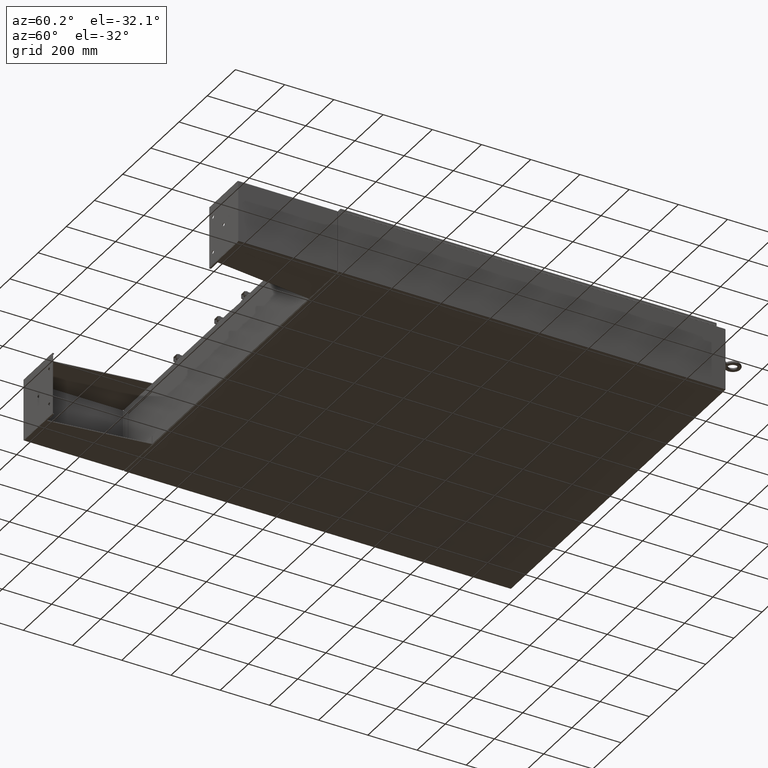
[diagram: clean part render]
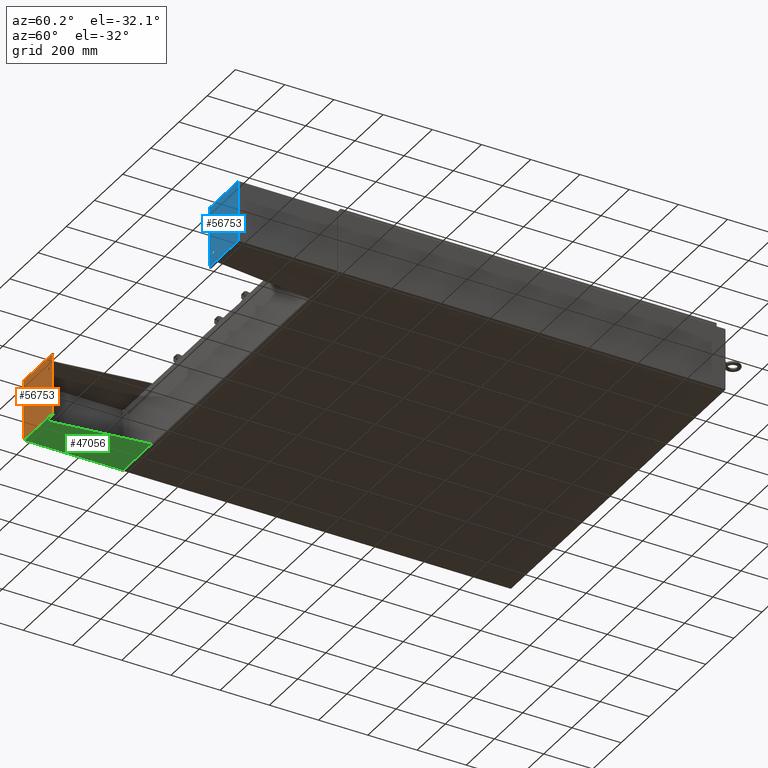
[diagram: same view with three faces highlighted in distinct colors, each labeled with its STEP entity id]
A machine part, auxiliary view with three faces highlighted in distinct colors.
Their STEP definitions:

[orange] entity #56753 — the highlighted planar face has unit normal (-0, -1, -0).
#542 = ORIENTED_EDGE ( 'NONE', *, *, #16895, .T. ) ;
#575 = AXIS2_PLACEMENT_3D ( 'NONE', #14690, #52329, #20105 ) ;
#1012 = VERTEX_POINT ( 'NONE', #57414 ) ;
#1205 = VERTEX_POINT ( 'NONE', #59295 ) ;
#1590 = EDGE_CURVE ( 'NONE', #41662, #35665, #32804, .T. ) ;
#3379 = FACE_OUTER_BOUND ( 'NONE', #40311, .T. ) ;
#3467 = EDGE_CURVE ( 'NONE', #40228, #1012, #7353, .T. ) ;
#3970 = CARTESIAN_POINT ( 'NONE',  ( 2.879000000000001800, -2.999999999999999600, -0.1050000000000000000 ) ) ;
#4107 = CARTESIAN_POINT ( 'NONE',  ( 4.878999999999997800, 4.000000000000000000, -0.1050000000000000000 ) ) ;
#4396 = AXIS2_PLACEMENT_3D ( 'NONE', #52409, #20192, #57824 ) ;
#5230 = ORIENTED_EDGE ( 'NONE', *, *, #11785, .F. ) ;
#5677 = ORIENTED_EDGE ( 'NONE', *, *, #5683, .T. ) ;
#5683 = EDGE_CURVE ( 'NONE', #35665, #41662, #31416, .T. ) ;
#6513 = AXIS2_PLACEMENT_3D ( 'NONE', #9412, #47020, #14829 ) ;
#6716 = AXIS2_PLACEMENT_3D ( 'NONE', #4107, #52522, #20307 ) ;
#7353 = CIRCLE ( 'NONE', #57452, 0.2499999999999998100 ) ;
#9349 = DIRECTION ( 'NONE',  ( -1.000000000000000000, 0.0000000000000000000, 0.0000000000000000000 ) ) ;
#9412 = CARTESIAN_POINT ( 'NONE',  ( 0.0000000000000000000, 0.0000000000000000000, -0.1050000000000000000 ) ) ;
#9508 = ORIENTED_EDGE ( 'NONE', *, *, #56071, .F. ) ;
#9997 = DIRECTION ( 'NONE',  ( -1.000000000000000000, -0.0000000000000000000, -0.0000000000000000000 ) ) ;
#11785 = EDGE_CURVE ( 'NONE', #46705, #56579, #61639, .T. ) ;
#11816 = EDGE_LOOP ( 'NONE', ( #542, #25419 ) ) ;
#14690 = CARTESIAN_POINT ( 'NONE',  ( -2.879000000000001800, -2.999999999999999600, -0.1050000000000000000 ) ) ;
#14829 = DIRECTION ( 'NONE',  ( -1.000000000000000000, 0.0000000000000000000, 0.0000000000000000000 ) ) ;
#15987 = FACE_BOUND ( 'NONE', #41636, .T. ) ;
#16572 = ORIENTED_EDGE ( 'NONE', *, *, #1590, .T. ) ;
#16895 = EDGE_CURVE ( 'NONE', #1205, #52854, #21179, .T. ) ;
#17550 = AXIS2_PLACEMENT_3D ( 'NONE', #50647, #18416, #56066 ) ;
#18416 = DIRECTION ( 'NONE',  ( -0.0000000000000000000, -0.0000000000000000000, 1.000000000000000000 ) ) ;
#19283 = ORIENTED_EDGE ( 'NONE', *, *, #27898, .F. ) ;
#19406 = VECTOR ( 'NONE', #67546, 39.37007874015748100 ) ;
#20105 = DIRECTION ( 'NONE',  ( -1.000000000000000000, 0.0000000000000000000, 0.0000000000000000000 ) ) ;
#20192 = DIRECTION ( 'NONE',  ( -0.0000000000000000000, -0.0000000000000000000, 1.000000000000000000 ) ) ;
#20307 = DIRECTION ( 'NONE',  ( -1.000000000000000000, 0.0000000000000000000, -0.0000000000000000000 ) ) ;
#20547 = DIRECTION ( 'NONE',  ( 0.0000000000000000000, 0.0000000000000000000, -1.000000000000000000 ) ) ;
#21179 = CIRCLE ( 'NONE', #17550, 0.2500000000000000000 ) ;
#21257 = DIRECTION ( 'NONE',  ( -0.0000000000000000000, -1.000000000000000000, -0.0000000000000000000 ) ) ;
#22446 = CARTESIAN_POINT ( 'NONE',  ( 2.629000000000001800, -2.999999999999999600, -0.1050000000000000000 ) ) ;
#23341 = ORIENTED_EDGE ( 'NONE', *, *, #51425, .F. ) ;
#24621 = DIRECTION ( 'NONE',  ( 1.000000000000000000, 0.0000000000000000000, 0.0000000000000000000 ) ) ;
#24701 = ORIENTED_EDGE ( 'NONE', *, *, #3467, .F. ) ;
#25419 = ORIENTED_EDGE ( 'NONE', *, *, #42131, .T. ) ;
#26943 = CIRCLE ( 'NONE', #6513, 0.2500000000000000000 ) ;
#27898 = EDGE_CURVE ( 'NONE', #32235, #41978, #33702, .T. ) ;
#31416 = CIRCLE ( 'NONE', #4396, 0.2499999999999998100 ) ;
#31970 = FACE_BOUND ( 'NONE', #63248, .T. ) ;
#32065 = CARTESIAN_POINT ( 'NONE',  ( -2.629000000000001800, -2.999999999999999600, -0.1050000000000000000 ) ) ;
#32235 = VERTEX_POINT ( 'NONE', #35721 ) ;
#32804 = CIRCLE ( 'NONE', #575, 0.2499999999999998100 ) ;
#33640 = FACE_BOUND ( 'NONE', #11816, .T. ) ;
#33702 = LINE ( 'NONE', #62136, #19406 ) ;
#35665 = VERTEX_POINT ( 'NONE', #63558 ) ;
#35721 = CARTESIAN_POINT ( 'NONE',  ( 4.878999999999997800, -4.000000000000000000, -0.1050000000000000000 ) ) ;
#36577 = VECTOR ( 'NONE', #9997, 39.37007874015748100 ) ;
#36806 = CARTESIAN_POINT ( 'NONE',  ( -4.879000000000002200, 4.000000000000000000, -0.1050000000000000000 ) ) ;
#39590 = AXIS2_PLACEMENT_3D ( 'NONE', #3970, #41570, #9349 ) ;
#39970 = LINE ( 'NONE', #36806, #36577 ) ;
#40094 = CARTESIAN_POINT ( 'NONE',  ( -4.879000000000002200, -4.000000000000000000, -0.1050000000000000000 ) ) ;
#40228 = VERTEX_POINT ( 'NONE', #22446 ) ;
#40311 = EDGE_LOOP ( 'NONE', ( #19283, #69177, #5230, #23341 ) ) ;
#41195 = CIRCLE ( 'NONE', #39590, 0.2499999999999998100 ) ;
#41570 = DIRECTION ( 'NONE',  ( 0.0000000000000000000, 0.0000000000000000000, -1.000000000000000000 ) ) ;
#41636 = EDGE_LOOP ( 'NONE', ( #9508, #24701 ) ) ;
#41662 = VERTEX_POINT ( 'NONE', #32065 ) ;
#41702 = PLANE ( 'NONE',  #6716 ) ;
#41978 = VERTEX_POINT ( 'NONE', #61203 ) ;
#42131 = EDGE_CURVE ( 'NONE', #52854, #1205, #26943, .T. ) ;
#46705 = VERTEX_POINT ( 'NONE', #53526 ) ;
#47020 = DIRECTION ( 'NONE',  ( -0.0000000000000000000, -0.0000000000000000000, 1.000000000000000000 ) ) ;
#47294 = VECTOR ( 'NONE', #21257, 39.37007874015748100 ) ;
#48590 = VECTOR ( 'NONE', #24621, 39.37007874015748100 ) ;
#49896 = CARTESIAN_POINT ( 'NONE',  ( -0.2500000000000000000, 3.061616997868383000E-017, -0.1050000000000000000 ) ) ;
#50647 = CARTESIAN_POINT ( 'NONE',  ( 0.0000000000000000000, 0.0000000000000000000, -0.1050000000000000000 ) ) ;
#51425 = EDGE_CURVE ( 'NONE', #41978, #46705, #39970, .T. ) ;
#52329 = DIRECTION ( 'NONE',  ( -0.0000000000000000000, -0.0000000000000000000, 1.000000000000000000 ) ) ;
#52409 = CARTESIAN_POINT ( 'NONE',  ( -2.879000000000001800, -2.999999999999999600, -0.1050000000000000000 ) ) ;
#52522 = DIRECTION ( 'NONE',  ( 0.0000000000000000000, 0.0000000000000000000, -1.000000000000000000 ) ) ;
#52764 = CARTESIAN_POINT ( 'NONE',  ( 2.879000000000001800, -2.999999999999999600, -0.1050000000000000000 ) ) ;
#52854 = VERTEX_POINT ( 'NONE', #49896 ) ;
#53482 = CARTESIAN_POINT ( 'NONE',  ( -4.879000000000002200, -4.000000000000000000, -0.1050000000000000000 ) ) ;
#53526 = CARTESIAN_POINT ( 'NONE',  ( -4.879000000000002200, 4.000000000000000000, -0.1050000000000000000 ) ) ;
#56066 = DIRECTION ( 'NONE',  ( -1.000000000000000000, 0.0000000000000000000, 0.0000000000000000000 ) ) ;
#56071 = EDGE_CURVE ( 'NONE', #1012, #40228, #41195, .T. ) ;
#56579 = VERTEX_POINT ( 'NONE', #40094 ) ;
#56753 = ADVANCED_FACE ( 'NONE', ( #3379, #33640, #31970, #15987 ), #41702, .T. ) ;
#57414 = CARTESIAN_POINT ( 'NONE',  ( 3.129000000000001300, -2.999999999999999600, -0.1050000000000000000 ) ) ;
#57452 = AXIS2_PLACEMENT_3D ( 'NONE', #52764, #20547, #58208 ) ;
#57824 = DIRECTION ( 'NONE',  ( -1.000000000000000000, 0.0000000000000000000, 0.0000000000000000000 ) ) ;
#57903 = EDGE_CURVE ( 'NONE', #56579, #32235, #62937, .T. ) ;
#58208 = DIRECTION ( 'NONE',  ( -1.000000000000000000, 0.0000000000000000000, 0.0000000000000000000 ) ) ;
#59295 = CARTESIAN_POINT ( 'NONE',  ( 0.2500000000000000000, 0.0000000000000000000, -0.1050000000000000000 ) ) ;
#61203 = CARTESIAN_POINT ( 'NONE',  ( 4.878999999999997800, 4.000000000000000000, -0.1050000000000000000 ) ) ;
#61639 = LINE ( 'NONE', #53482, #47294 ) ;
#62015 = CARTESIAN_POINT ( 'NONE',  ( -4.879000000000002200, -4.000000000000000000, -0.1050000000000000000 ) ) ;
#62136 = CARTESIAN_POINT ( 'NONE',  ( 4.878999999999997800, -4.000000000000000000, -0.1050000000000000000 ) ) ;
#62937 = LINE ( 'NONE', #62015, #48590 ) ;
#63248 = EDGE_LOOP ( 'NONE', ( #16572, #5677 ) ) ;
#63558 = CARTESIAN_POINT ( 'NONE',  ( -3.129000000000001300, -2.999999999999999600, -0.1050000000000000000 ) ) ;
#67546 = DIRECTION ( 'NONE',  ( 0.0000000000000000000, 1.000000000000000000, 0.0000000000000000000 ) ) ;
#69177 = ORIENTED_EDGE ( 'NONE', *, *, #57903, .F. ) ;

[blue] entity #56753 — the highlighted planar face has unit normal (-0, -1, -0).
#542 = ORIENTED_EDGE ( 'NONE', *, *, #16895, .T. ) ;
#575 = AXIS2_PLACEMENT_3D ( 'NONE', #14690, #52329, #20105 ) ;
#1012 = VERTEX_POINT ( 'NONE', #57414 ) ;
#1205 = VERTEX_POINT ( 'NONE', #59295 ) ;
#1590 = EDGE_CURVE ( 'NONE', #41662, #35665, #32804, .T. ) ;
#3379 = FACE_OUTER_BOUND ( 'NONE', #40311, .T. ) ;
#3467 = EDGE_CURVE ( 'NONE', #40228, #1012, #7353, .T. ) ;
#3970 = CARTESIAN_POINT ( 'NONE',  ( 2.879000000000001800, -2.999999999999999600, -0.1050000000000000000 ) ) ;
#4107 = CARTESIAN_POINT ( 'NONE',  ( 4.878999999999997800, 4.000000000000000000, -0.1050000000000000000 ) ) ;
#4396 = AXIS2_PLACEMENT_3D ( 'NONE', #52409, #20192, #57824 ) ;
#5230 = ORIENTED_EDGE ( 'NONE', *, *, #11785, .F. ) ;
#5677 = ORIENTED_EDGE ( 'NONE', *, *, #5683, .T. ) ;
#5683 = EDGE_CURVE ( 'NONE', #35665, #41662, #31416, .T. ) ;
#6513 = AXIS2_PLACEMENT_3D ( 'NONE', #9412, #47020, #14829 ) ;
#6716 = AXIS2_PLACEMENT_3D ( 'NONE', #4107, #52522, #20307 ) ;
#7353 = CIRCLE ( 'NONE', #57452, 0.2499999999999998100 ) ;
#9349 = DIRECTION ( 'NONE',  ( -1.000000000000000000, 0.0000000000000000000, 0.0000000000000000000 ) ) ;
#9412 = CARTESIAN_POINT ( 'NONE',  ( 0.0000000000000000000, 0.0000000000000000000, -0.1050000000000000000 ) ) ;
#9508 = ORIENTED_EDGE ( 'NONE', *, *, #56071, .F. ) ;
#9997 = DIRECTION ( 'NONE',  ( -1.000000000000000000, -0.0000000000000000000, -0.0000000000000000000 ) ) ;
#11785 = EDGE_CURVE ( 'NONE', #46705, #56579, #61639, .T. ) ;
#11816 = EDGE_LOOP ( 'NONE', ( #542, #25419 ) ) ;
#14690 = CARTESIAN_POINT ( 'NONE',  ( -2.879000000000001800, -2.999999999999999600, -0.1050000000000000000 ) ) ;
#14829 = DIRECTION ( 'NONE',  ( -1.000000000000000000, 0.0000000000000000000, 0.0000000000000000000 ) ) ;
#15987 = FACE_BOUND ( 'NONE', #41636, .T. ) ;
#16572 = ORIENTED_EDGE ( 'NONE', *, *, #1590, .T. ) ;
#16895 = EDGE_CURVE ( 'NONE', #1205, #52854, #21179, .T. ) ;
#17550 = AXIS2_PLACEMENT_3D ( 'NONE', #50647, #18416, #56066 ) ;
#18416 = DIRECTION ( 'NONE',  ( -0.0000000000000000000, -0.0000000000000000000, 1.000000000000000000 ) ) ;
#19283 = ORIENTED_EDGE ( 'NONE', *, *, #27898, .F. ) ;
#19406 = VECTOR ( 'NONE', #67546, 39.37007874015748100 ) ;
#20105 = DIRECTION ( 'NONE',  ( -1.000000000000000000, 0.0000000000000000000, 0.0000000000000000000 ) ) ;
#20192 = DIRECTION ( 'NONE',  ( -0.0000000000000000000, -0.0000000000000000000, 1.000000000000000000 ) ) ;
#20307 = DIRECTION ( 'NONE',  ( -1.000000000000000000, 0.0000000000000000000, -0.0000000000000000000 ) ) ;
#20547 = DIRECTION ( 'NONE',  ( 0.0000000000000000000, 0.0000000000000000000, -1.000000000000000000 ) ) ;
#21179 = CIRCLE ( 'NONE', #17550, 0.2500000000000000000 ) ;
#21257 = DIRECTION ( 'NONE',  ( -0.0000000000000000000, -1.000000000000000000, -0.0000000000000000000 ) ) ;
#22446 = CARTESIAN_POINT ( 'NONE',  ( 2.629000000000001800, -2.999999999999999600, -0.1050000000000000000 ) ) ;
#23341 = ORIENTED_EDGE ( 'NONE', *, *, #51425, .F. ) ;
#24621 = DIRECTION ( 'NONE',  ( 1.000000000000000000, 0.0000000000000000000, 0.0000000000000000000 ) ) ;
#24701 = ORIENTED_EDGE ( 'NONE', *, *, #3467, .F. ) ;
#25419 = ORIENTED_EDGE ( 'NONE', *, *, #42131, .T. ) ;
#26943 = CIRCLE ( 'NONE', #6513, 0.2500000000000000000 ) ;
#27898 = EDGE_CURVE ( 'NONE', #32235, #41978, #33702, .T. ) ;
#31416 = CIRCLE ( 'NONE', #4396, 0.2499999999999998100 ) ;
#31970 = FACE_BOUND ( 'NONE', #63248, .T. ) ;
#32065 = CARTESIAN_POINT ( 'NONE',  ( -2.629000000000001800, -2.999999999999999600, -0.1050000000000000000 ) ) ;
#32235 = VERTEX_POINT ( 'NONE', #35721 ) ;
#32804 = CIRCLE ( 'NONE', #575, 0.2499999999999998100 ) ;
#33640 = FACE_BOUND ( 'NONE', #11816, .T. ) ;
#33702 = LINE ( 'NONE', #62136, #19406 ) ;
#35665 = VERTEX_POINT ( 'NONE', #63558 ) ;
#35721 = CARTESIAN_POINT ( 'NONE',  ( 4.878999999999997800, -4.000000000000000000, -0.1050000000000000000 ) ) ;
#36577 = VECTOR ( 'NONE', #9997, 39.37007874015748100 ) ;
#36806 = CARTESIAN_POINT ( 'NONE',  ( -4.879000000000002200, 4.000000000000000000, -0.1050000000000000000 ) ) ;
#39590 = AXIS2_PLACEMENT_3D ( 'NONE', #3970, #41570, #9349 ) ;
#39970 = LINE ( 'NONE', #36806, #36577 ) ;
#40094 = CARTESIAN_POINT ( 'NONE',  ( -4.879000000000002200, -4.000000000000000000, -0.1050000000000000000 ) ) ;
#40228 = VERTEX_POINT ( 'NONE', #22446 ) ;
#40311 = EDGE_LOOP ( 'NONE', ( #19283, #69177, #5230, #23341 ) ) ;
#41195 = CIRCLE ( 'NONE', #39590, 0.2499999999999998100 ) ;
#41570 = DIRECTION ( 'NONE',  ( 0.0000000000000000000, 0.0000000000000000000, -1.000000000000000000 ) ) ;
#41636 = EDGE_LOOP ( 'NONE', ( #9508, #24701 ) ) ;
#41662 = VERTEX_POINT ( 'NONE', #32065 ) ;
#41702 = PLANE ( 'NONE',  #6716 ) ;
#41978 = VERTEX_POINT ( 'NONE', #61203 ) ;
#42131 = EDGE_CURVE ( 'NONE', #52854, #1205, #26943, .T. ) ;
#46705 = VERTEX_POINT ( 'NONE', #53526 ) ;
#47020 = DIRECTION ( 'NONE',  ( -0.0000000000000000000, -0.0000000000000000000, 1.000000000000000000 ) ) ;
#47294 = VECTOR ( 'NONE', #21257, 39.37007874015748100 ) ;
#48590 = VECTOR ( 'NONE', #24621, 39.37007874015748100 ) ;
#49896 = CARTESIAN_POINT ( 'NONE',  ( -0.2500000000000000000, 3.061616997868383000E-017, -0.1050000000000000000 ) ) ;
#50647 = CARTESIAN_POINT ( 'NONE',  ( 0.0000000000000000000, 0.0000000000000000000, -0.1050000000000000000 ) ) ;
#51425 = EDGE_CURVE ( 'NONE', #41978, #46705, #39970, .T. ) ;
#52329 = DIRECTION ( 'NONE',  ( -0.0000000000000000000, -0.0000000000000000000, 1.000000000000000000 ) ) ;
#52409 = CARTESIAN_POINT ( 'NONE',  ( -2.879000000000001800, -2.999999999999999600, -0.1050000000000000000 ) ) ;
#52522 = DIRECTION ( 'NONE',  ( 0.0000000000000000000, 0.0000000000000000000, -1.000000000000000000 ) ) ;
#52764 = CARTESIAN_POINT ( 'NONE',  ( 2.879000000000001800, -2.999999999999999600, -0.1050000000000000000 ) ) ;
#52854 = VERTEX_POINT ( 'NONE', #49896 ) ;
#53482 = CARTESIAN_POINT ( 'NONE',  ( -4.879000000000002200, -4.000000000000000000, -0.1050000000000000000 ) ) ;
#53526 = CARTESIAN_POINT ( 'NONE',  ( -4.879000000000002200, 4.000000000000000000, -0.1050000000000000000 ) ) ;
#56066 = DIRECTION ( 'NONE',  ( -1.000000000000000000, 0.0000000000000000000, 0.0000000000000000000 ) ) ;
#56071 = EDGE_CURVE ( 'NONE', #1012, #40228, #41195, .T. ) ;
#56579 = VERTEX_POINT ( 'NONE', #40094 ) ;
#56753 = ADVANCED_FACE ( 'NONE', ( #3379, #33640, #31970, #15987 ), #41702, .T. ) ;
#57414 = CARTESIAN_POINT ( 'NONE',  ( 3.129000000000001300, -2.999999999999999600, -0.1050000000000000000 ) ) ;
#57452 = AXIS2_PLACEMENT_3D ( 'NONE', #52764, #20547, #58208 ) ;
#57824 = DIRECTION ( 'NONE',  ( -1.000000000000000000, 0.0000000000000000000, 0.0000000000000000000 ) ) ;
#57903 = EDGE_CURVE ( 'NONE', #56579, #32235, #62937, .T. ) ;
#58208 = DIRECTION ( 'NONE',  ( -1.000000000000000000, 0.0000000000000000000, 0.0000000000000000000 ) ) ;
#59295 = CARTESIAN_POINT ( 'NONE',  ( 0.2500000000000000000, 0.0000000000000000000, -0.1050000000000000000 ) ) ;
#61203 = CARTESIAN_POINT ( 'NONE',  ( 4.878999999999997800, 4.000000000000000000, -0.1050000000000000000 ) ) ;
#61639 = LINE ( 'NONE', #53482, #47294 ) ;
#62015 = CARTESIAN_POINT ( 'NONE',  ( -4.879000000000002200, -4.000000000000000000, -0.1050000000000000000 ) ) ;
#62136 = CARTESIAN_POINT ( 'NONE',  ( 4.878999999999997800, -4.000000000000000000, -0.1050000000000000000 ) ) ;
#62937 = LINE ( 'NONE', #62015, #48590 ) ;
#63248 = EDGE_LOOP ( 'NONE', ( #16572, #5677 ) ) ;
#63558 = CARTESIAN_POINT ( 'NONE',  ( -3.129000000000001300, -2.999999999999999600, -0.1050000000000000000 ) ) ;
#67546 = DIRECTION ( 'NONE',  ( 0.0000000000000000000, 1.000000000000000000, 0.0000000000000000000 ) ) ;
#69177 = ORIENTED_EDGE ( 'NONE', *, *, #57903, .F. ) ;

[green] entity #47056 — the highlighted planar face has unit normal (-0, -0, 1).
#816 = EDGE_CURVE ( 'NONE', #20283, #58457, #22958, .T. ) ;
#1327 = DIRECTION ( 'NONE',  ( 7.004738445292925900E-015, 0.0000000000000000000, 1.000000000000000000 ) ) ;
#1390 = EDGE_CURVE ( 'NONE', #40135, #58457, #12661, .T. ) ;
#2884 = FACE_OUTER_BOUND ( 'NONE', #35505, .T. ) ;
#3335 = EDGE_CURVE ( 'NONE', #40378, #24212, #20828, .T. ) ;
#5312 = VECTOR ( 'NONE', #22848, 39.37007874015748100 ) ;
#9497 = LINE ( 'NONE', #42797, #65042 ) ;
#10521 = EDGE_CURVE ( 'NONE', #46176, #40378, #9497, .T. ) ;
#10583 = DIRECTION ( 'NONE',  ( 0.0000000000000000000, -1.000000000000000000, 0.0000000000000000000 ) ) ;
#11414 = PLANE ( 'NONE',  #12048 ) ;
#12048 = AXIS2_PLACEMENT_3D ( 'NONE', #65038, #49023, #16833 ) ;
#12661 = LINE ( 'NONE', #55237, #68191 ) ;
#13746 = DIRECTION ( 'NONE',  ( 4.399772607369799400E-016, 0.9922942345449394800, 0.1239038017531047700 ) ) ;
#15000 = VECTOR ( 'NONE', #1327, 39.37007874015748100 ) ;
#15410 = LINE ( 'NONE', #64213, #56649 ) ;
#15773 = VECTOR ( 'NONE', #13746, 39.37007874015748100 ) ;
#16013 = DIRECTION ( 'NONE',  ( -3.550958521948298200E-015, -0.0000000000000000000, -1.000000000000000000 ) ) ;
#16833 = DIRECTION ( 'NONE',  ( 3.550958521948298200E-015, 0.0000000000000000000, 1.000000000000000000 ) ) ;
#20283 = VERTEX_POINT ( 'NONE', #44880 ) ;
#20828 = LINE ( 'NONE', #51130, #15773 ) ;
#21080 = ORIENTED_EDGE ( 'NONE', *, *, #3335, .F. ) ;
#21715 = EDGE_CURVE ( 'NONE', #40135, #24212, #56235, .T. ) ;
#22053 = CARTESIAN_POINT ( 'NONE',  ( 5.000000000000028400, -7.749999999999999100, 8.001000000000006600 ) ) ;
#22226 = CARTESIAN_POINT ( 'NONE',  ( 5.000000000000041700, 7.857000000000001100, 8.000999999999985200 ) ) ;
#22848 = DIRECTION ( 'NONE',  ( -3.550958521948298200E-015, 0.0000000000000000000, -1.000000000000000000 ) ) ;
#22958 = LINE ( 'NONE', #38874, #5312 ) ;
#24212 = VERTEX_POINT ( 'NONE', #22226 ) ;
#32346 = CARTESIAN_POINT ( 'NONE',  ( 4.999999999999984900, 7.857000000000001100, 0.03899999999998721200 ) ) ;
#34053 = DIRECTION ( 'NONE',  ( -0.0000000000000000000, -1.000000000000000000, 0.0000000000000000000 ) ) ;
#34333 = ORIENTED_EDGE ( 'NONE', *, *, #41210, .T. ) ;
#35505 = EDGE_LOOP ( 'NONE', ( #69166, #34333, #55725, #60271, #50095, #21080 ) ) ;
#38874 = CARTESIAN_POINT ( 'NONE',  ( 5.000000000000028400, -7.999999999999999100, 8.000999999999987000 ) ) ;
#38947 = CARTESIAN_POINT ( 'NONE',  ( 4.999999999999984900, 7.857000000000001100, 0.03899999999998721200 ) ) ;
#40135 = VERTEX_POINT ( 'NONE', #32346 ) ;
#40378 = VERTEX_POINT ( 'NONE', #66653 ) ;
#41210 = EDGE_CURVE ( 'NONE', #46176, #20283, #15410, .T. ) ;
#42797 = CARTESIAN_POINT ( 'NONE',  ( 5.000000000000028400, -7.749999999999999100, 8.000999999999987000 ) ) ;
#44880 = CARTESIAN_POINT ( 'NONE',  ( 5.000000000000028400, -7.999999999999999100, 8.000999999999987000 ) ) ;
#46176 = VERTEX_POINT ( 'NONE', #22053 ) ;
#47056 = ADVANCED_FACE ( 'NONE', ( #2884 ), #11414, .F. ) ;
#49023 = DIRECTION ( 'NONE',  ( -1.000000000000000000, 0.0000000000000000000, 3.550958521948298200E-015 ) ) ;
#50095 = ORIENTED_EDGE ( 'NONE', *, *, #21715, .T. ) ;
#51130 = CARTESIAN_POINT ( 'NONE',  ( 5.000000000000019500, -7.749999999999999100, 6.052216497445928500 ) ) ;
#52150 = CARTESIAN_POINT ( 'NONE',  ( 4.999999999999999100, -7.999999999999999100, 0.03900000000000071500 ) ) ;
#55237 = CARTESIAN_POINT ( 'NONE',  ( 4.999999999999999100, -7.999999999999999100, 0.03899999999998721200 ) ) ;
#55725 = ORIENTED_EDGE ( 'NONE', *, *, #816, .T. ) ;
#56235 = LINE ( 'NONE', #38947, #15000 ) ;
#56649 = VECTOR ( 'NONE', #10583, 39.37007874015748100 ) ;
#58457 = VERTEX_POINT ( 'NONE', #52150 ) ;
#60271 = ORIENTED_EDGE ( 'NONE', *, *, #1390, .F. ) ;
#64213 = CARTESIAN_POINT ( 'NONE',  ( 5.000000000000028400, -7.999999999999999100, 8.000999999999987000 ) ) ;
#65038 = CARTESIAN_POINT ( 'NONE',  ( 5.000000000000028400, -7.999999999999999100, 8.000999999999987000 ) ) ;
#65042 = VECTOR ( 'NONE', #16013, 39.37007874015748100 ) ;
#66653 = CARTESIAN_POINT ( 'NONE',  ( 5.000000000000021300, -7.749999999999999100, 6.052216497445926700 ) ) ;
#68191 = VECTOR ( 'NONE', #34053, 39.37007874015748100 ) ;
#69166 = ORIENTED_EDGE ( 'NONE', *, *, #10521, .F. ) ;